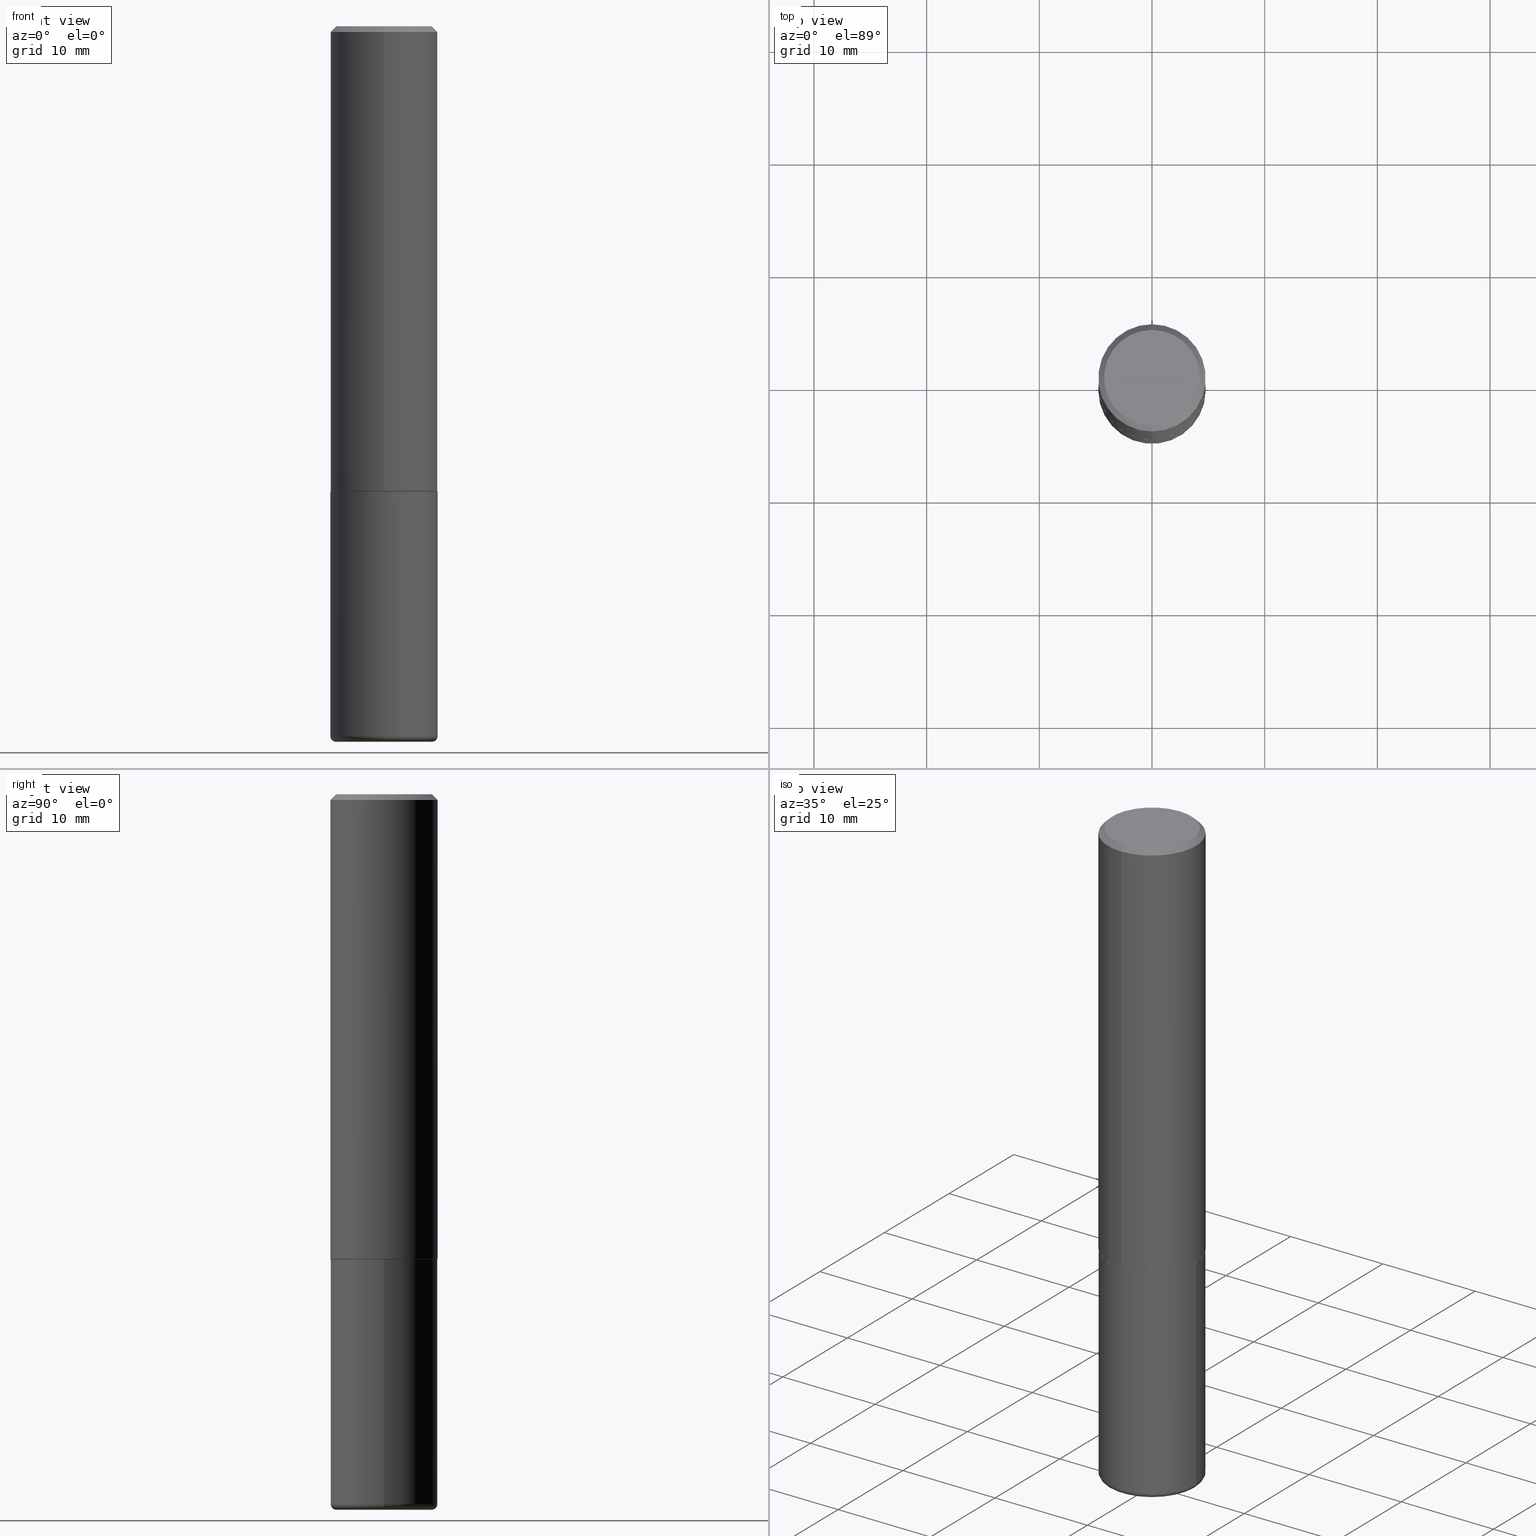
[diagram: canonical four-view strip — front | top / right | iso, engineering-drawing reading convention]
A machine part, canonical four-view strip (front | top / right | iso — engineering-drawing reading convention). The complete STEP part file that produces these views, byte-faithful:
ISO-10303-21;
HEADER;
FILE_DESCRIPTION (( 'STEP AP203' ),
    '1' );
FILE_NAME ('36856.STEP',
    '2024-03-01T18:16:26',
    ( '' ),
    ( '' ),
    'SwSTEP 2.0',
    'SolidWorks 2023',
    '' );
FILE_SCHEMA (( 'CONFIG_CONTROL_DESIGN' ));
ENDSEC;

DATA;
#1 = CIRCLE ( 'NONE', #334, 0.01999999999999988939 ) ;
#2 = AXIS2_PLACEMENT_3D ( 'NONE', #81, #337, #115 ) ;
#3 = AXIS2_PLACEMENT_3D ( 'NONE', #298, #412, #127 ) ;
#4 = CC_DESIGN_APPROVAL ( #134, ( #94 ) ) ;
#5 = ADVANCED_FACE ( 'NONE', ( #402 ), #51, .T. ) ;
#6 = SHAPE_DEFINITION_REPRESENTATION ( #236, #302 ) ;
#7 = EDGE_LOOP ( 'NONE', ( #142, #184, #23, #29 ) ) ;
#8 = DIRECTION ( 'NONE',  ( 2.438088387897960049E-29, -3.491481338843145188E-15, -1.000000000000000000 ) ) ;
#9 = CIRCLE ( 'NONE', #70, 0.1675000000000001210 ) ;
#10 = ORIENTED_EDGE ( 'NONE', *, *, #156, .F. ) ;
#11 = DIRECTION ( 'NONE',  ( -2.445468806185136877E-29, 3.491481338843145188E-15, 1.000000000000000000 ) ) ;
#12 = CALENDAR_DATE ( 2024, 1, 3 ) ;
#13 = CARTESIAN_POINT ( 'NONE',  ( 6.064762639339139522E-29, -8.658873720331001644E-15, -2.480000000000000426 ) ) ;
#14 = DIRECTION ( 'NONE',  ( 1.000000000000000000, -6.982962677686261189E-15, 0.000000000000000000 ) ) ;
#15 = ORIENTED_EDGE ( 'NONE', *, *, #392, .F. ) ;
#16 = AXIS2_PLACEMENT_3D ( 'NONE', #160, #260, #18 ) ;
#17 = CARTESIAN_POINT ( 'NONE',  ( -1.309305502066136748E-15, -0.1875000000000058842, -1.623999999999999666 ) ) ;
#18 = DIRECTION ( 'NONE',  ( -1.000000000000000000, 7.105427357601014480E-15, 0.000000000000000000 ) ) ;
#19 = DIRECTION ( 'NONE',  ( -6.982962677686266711E-15, -1.000000000000000000, 3.491481338843145583E-15 ) ) ;
#20 = PERSON_AND_ORGANIZATION_ROLE ( 'creator' ) ;
#21 = FACE_OUTER_BOUND ( 'NONE', #7, .T. ) ;
#22 = VERTEX_POINT ( 'NONE', #152 ) ;
#23 = ORIENTED_EDGE ( 'NONE', *, *, #250, .T. ) ;
#24 = VERTEX_POINT ( 'NONE', #69 ) ;
#25 = AXIS2_PLACEMENT_3D ( 'NONE', #107, #220, #408 ) ;
#26 =( GEOMETRIC_REPRESENTATION_CONTEXT ( 3 ) GLOBAL_UNCERTAINTY_ASSIGNED_CONTEXT ( ( #130 ) ) GLOBAL_UNIT_ASSIGNED_CONTEXT ( ( #65, #140, #207 ) ) REPRESENTATION_CONTEXT ( 'NONE', 'WORKASPACE' ) );
#27 = APPROVAL_PERSON_ORGANIZATION ( #322, #193, #144 ) ;
#28 = FACE_OUTER_BOUND ( 'NONE', #348, .T. ) ;
#29 = ORIENTED_EDGE ( 'NONE', *, *, #169, .F. ) ;
#30 = CARTESIAN_POINT ( 'NONE',  ( 6.113672015462842613E-29, -8.728703347107864943E-15, -2.500000000000000000 ) ) ;
#31 = FACE_OUTER_BOUND ( 'NONE', #68, .T. ) ;
#32 = CLOSED_SHELL ( 'NONE', ( #196, #5, #335, #114, #85, #244, #104, #117 ) ) ;
#33 = AXIS2_PLACEMENT_3D ( 'NONE', #385, #95, #231 ) ;
#34 = CARTESIAN_POINT ( 'NONE',  ( 1.328714915871427774E-15, 0.1864999999999943092, -1.625000000000000666 ) ) ;
#35 = PRODUCT_RELATED_PRODUCT_CATEGORY ( 'detail', '', ( #305 ) ) ;
#36 = EDGE_CURVE ( 'NONE', #159, #165, #1, .T. ) ;
#37 = AXIS2_PLACEMENT_3D ( 'NONE', #64, #195, #90 ) ;
#38 = ORIENTED_EDGE ( 'NONE', *, *, #166, .T. ) ;
#39 = CARTESIAN_POINT ( 'NONE',  ( 3.970274765435149780E-29, -5.671836297237862859E-15, -1.624000000000000110 ) ) ;
#40 = ORIENTED_EDGE ( 'NONE', *, *, #61, .F. ) ;
#41 = CARTESIAN_POINT ( 'NONE',  ( 6.064762639339139522E-29, -8.658873720331001644E-15, -2.480000000000000426 ) ) ;
#42 = ORIENTED_EDGE ( 'NONE', *, *, #166, .F. ) ;
#43 = TOROIDAL_SURFACE ( 'NONE', #172, 0.1675000000000000100, 0.01999999999999988939 ) ;
#44 = APPROVAL_STATUS ( 'not_yet_approved' ) ;
#45 = ORIENTED_EDGE ( 'NONE', *, *, #392, .T. ) ;
#46 = DATE_AND_TIME ( #12, #391 ) ;
#47 = DIRECTION ( 'NONE',  ( -2.445468806185136597E-29, 3.491481338843145583E-15, 1.000000000000000000 ) ) ;
#48 = EDGE_CURVE ( 'NONE', #191, #77, #303, .T. ) ;
#49 = CALENDAR_DATE ( 2024, 1, 3 ) ;
#50 = ORIENTED_EDGE ( 'NONE', *, *, #407, .F. ) ;
#51 = CYLINDRICAL_SURFACE ( 'NONE', #2, 0.1875000000000001110 ) ;
#52 = PERSON_AND_ORGANIZATION_ROLE ( 'classification_officer' ) ;
#53 = CARTESIAN_POINT ( 'NONE',  ( 0.1875000000000000278, -6.982962677686288010E-15, -1.625000000000000222 ) ) ;
#54 = DIRECTION ( 'NONE',  ( 1.000000000000000000, -6.982962677686265922E-15, 4.876176775795935793E-29 ) ) ;
#55 = DIRECTION ( 'NONE',  ( -2.444750471327062022E-29, 3.492510035244989057E-15, 1.000000000000000000 ) ) ;
#56 = CLOSED_SHELL ( 'NONE', ( #296, #319, #307, #92, #261, #418 ) ) ;
#57 = VECTOR ( 'NONE', #161, 39.37007874015748143 ) ;
#58 = APPROVAL_PERSON_ORGANIZATION ( #276, #134, #367 ) ;
#59 = CARTESIAN_POINT ( 'NONE',  ( 0.1675000000000000100, -9.898349595620314932E-15, -2.500000000000000000 ) ) ;
#60 = CARTESIAN_POINT ( 'NONE',  ( 2.500295033717015477E-45, -3.571859622789970961E-31, -1.022719931151011213E-16 ) ) ;
#61 = EDGE_CURVE ( 'NONE', #123, #159, #316, .T. ) ;
#62 = DIRECTION ( 'NONE',  ( 5.024295867789177050E-15, 0.7071067811867068897, 0.7071067811863879227 ) ) ;
#63 = CIRCLE ( 'NONE', #271, 0.1875000000000000278 ) ;
#64 = CARTESIAN_POINT ( 'NONE',  ( 4.889500942654134974E-31, -6.985020070489991672E-17, -0.02000000000000004205 ) ) ;
#65 =( CONVERSION_BASED_UNIT ( 'INCH', #308 ) LENGTH_UNIT ( ) NAMED_UNIT ( #299 ) );
#66 = ORIENTED_EDGE ( 'NONE', *, *, #132, .F. ) ;
#67 = VERTEX_POINT ( 'NONE', #53 ) ;
#68 = EDGE_LOOP ( 'NONE', ( #273, #240 ) ) ;
#69 = CARTESIAN_POINT ( 'NONE',  ( 1.332267629550208753E-15, 0.1874999999999945599, -1.624000000000000776 ) ) ;
#70 = AXIS2_PLACEMENT_3D ( 'NONE', #60, #133, #96 ) ;
#71 = PERSON_AND_ORGANIZATION ( #329, #347 ) ;
#72 = FACE_OUTER_BOUND ( 'NONE', #285, .T. ) ;
#73 = EDGE_CURVE ( 'NONE', #321, #265, #373, .T. ) ;
#74 = ORIENTED_EDGE ( 'NONE', *, *, #242, .F. ) ;
#75 = DATE_TIME_ROLE ( 'classification_date' ) ;
#76 = EDGE_LOOP ( 'NONE', ( #206, #389, #315, #371 ) ) ;
#77 = VERTEX_POINT ( 'NONE', #400 ) ;
#78 = COORDINATED_UNIVERSAL_TIME_OFFSET ( 5, 0, .BEHIND. ) ;
#79 = AXIS2_PLACEMENT_3D ( 'NONE', #151, #118, #88 ) ;
#80 = DIRECTION ( 'NONE',  ( -2.445468806185136597E-29, 3.491481338843145583E-15, 1.000000000000000000 ) ) ;
#81 = CARTESIAN_POINT ( 'NONE',  ( 0.000000000000000000, 0.000000000000000000, 0.000000000000000000 ) ) ;
#82 = PERSON_AND_ORGANIZATION ( #329, #347 ) ;
#83 = DIRECTION ( 'NONE',  ( -2.445468806185136597E-29, 3.491481338843145583E-15, 1.000000000000000000 ) ) ;
#84 = ORIENTED_EDGE ( 'NONE', *, *, #73, .T. ) ;
#85 = ADVANCED_FACE ( 'NONE', ( #209 ), #215, .T. ) ;
#86 = DIRECTION ( 'NONE',  ( -6.982962677686265922E-15, -1.000000000000000000, 2.929595703661408850E-15 ) ) ;
#87 = CARTESIAN_POINT ( 'NONE',  ( 3.972719515906477292E-29, -5.675328807273108302E-15, -1.625000000000000222 ) ) ;
#88 = DIRECTION ( 'NONE',  ( -6.982962677686265922E-15, -1.000000000000000000, 2.913971193241877216E-15 ) ) ;
#89 = DIRECTION ( 'NONE',  ( -6.982962677686265922E-15, -1.000000000000000000, 2.929595703661408850E-15 ) ) ;
#90 = DIRECTION ( 'NONE',  ( 6.982962677686265922E-15, 1.000000000000000000, -3.483106191921935160E-15 ) ) ;
#91 = VECTOR ( 'NONE', #297, 39.37007874015748143 ) ;
#92 = ADVANCED_FACE ( 'NONE', ( #211 ), #112, .T. ) ;
#93 = CARTESIAN_POINT ( 'NONE',  ( 1.325162202192626283E-15, 0.1864999999999943092, -1.625000000000000666 ) ) ;
#94 = PRODUCT_DEFINITION ( 'UNKNOWN', '', #155, #342 ) ;
#95 = DIRECTION ( 'NONE',  ( -2.444750471327062302E-29, 3.492510035244989057E-15, 1.000000000000000000 ) ) ;
#96 = DIRECTION ( 'NONE',  ( -6.982962677686265922E-15, -1.000000000000000000, 3.492510035244988662E-15 ) ) ;
#97 = EDGE_LOOP ( 'NONE', ( #352, #275, #254, #366 ) ) ;
#98 = DIRECTION ( 'NONE',  ( 1.000000000000000000, -6.982962677686266711E-15, 0.000000000000000000 ) ) ;
#99 = AXIS2_PLACEMENT_3D ( 'NONE', #87, #55, #259 ) ;
#100 = LOCAL_TIME ( 13, 16, 26.00000000000000000, #212 ) ;
#101 = EDGE_CURVE ( 'NONE', #102, #203, #179, .T. ) ;
#102 = VERTEX_POINT ( 'NONE', #34 ) ;
#103 = DIRECTION ( 'NONE',  ( -2.445468806185136597E-29, 3.491481338843145583E-15, 1.000000000000000000 ) ) ;
#104 = ADVANCED_FACE ( 'NONE', ( #164 ), #226, .F. ) ;
#105 = ORIENTED_EDGE ( 'NONE', *, *, #101, .F. ) ;
#106 = AXIS2_PLACEMENT_3D ( 'NONE', #349, #148, #252 ) ;
#107 = CARTESIAN_POINT ( 'NONE',  ( 2.500295033717015477E-45, -3.571859622789970961E-31, -1.022719931151011213E-16 ) ) ;
#108 = VECTOR ( 'NONE', #358, 39.37007874015748143 ) ;
#109 = PERSON_AND_ORGANIZATION ( #329, #347 ) ;
#110 = CC_DESIGN_APPROVAL ( #193, ( #262 ) ) ;
#111 = DIRECTION ( 'NONE',  ( -2.445468806185136597E-29, 3.491481338843145583E-15, 1.000000000000000000 ) ) ;
#112 = CYLINDRICAL_SURFACE ( 'NONE', #413, 0.1875000000000000278 ) ;
#113 = CARTESIAN_POINT ( 'NONE',  ( 0.000000000000000000, 0.000000000000000000, 0.000000000000000000 ) ) ;
#114 = ADVANCED_FACE ( 'NONE', ( #224 ), #282, .T. ) ;
#115 = DIRECTION ( 'NONE',  ( -6.982962677686266711E-15, -1.000000000000000000, 3.492510035244989451E-15 ) ) ;
#116 = DIRECTION ( 'NONE',  ( 1.000000000000000000, 0.000000000000000000, 0.000000000000000000 ) ) ;
#117 = ADVANCED_FACE ( 'NONE', ( #31 ), #197, .F. ) ;
#118 = DIRECTION ( 'NONE',  ( -2.444750471327062302E-29, 3.492510035244989057E-15, 1.000000000000000000 ) ) ;
#119 = ORIENTED_EDGE ( 'NONE', *, *, #213, .T. ) ;
#120 = PERSON_AND_ORGANIZATION ( #329, #347 ) ;
#121 = CIRCLE ( 'NONE', #383, 0.1875000000000000278 ) ;
#122 = FACE_OUTER_BOUND ( 'NONE', #97, .T. ) ;
#123 = VERTEX_POINT ( 'NONE', #192 ) ;
#124 = FACE_OUTER_BOUND ( 'NONE', #363, .T. ) ;
#125 = DIRECTION ( 'NONE',  ( -2.444750471327062302E-29, 3.492510035244989057E-15, 1.000000000000000000 ) ) ;
#126 = CC_DESIGN_PERSON_AND_ORGANIZATION_ASSIGNMENT ( #71, #403, ( #155 ) ) ;
#127 = DIRECTION ( 'NONE',  ( -6.982962677686265922E-15, -1.000000000000000000, 3.483106191921935160E-15 ) ) ;
#128 = DATE_AND_TIME ( #341, #100 ) ;
#129 = CARTESIAN_POINT ( 'NONE',  ( 0.1874999999999999722, -9.968179222397176653E-15, -2.480000000000000426 ) ) ;
#130 = UNCERTAINTY_MEASURE_WITH_UNIT (LENGTH_MEASURE( 1.000000000000000082E-05 ), #65, 'distance_accuracy_value', 'NONE');
#131 = MANIFOLD_SOLID_BREP ( 'Body-Move/Copy2[2]', #32 ) ;
#132 = EDGE_CURVE ( 'NONE', #203, #314, #382, .T. ) ;
#133 = DIRECTION ( 'NONE',  ( -2.444750471327062302E-29, 3.492510035244989057E-15, 1.000000000000000000 ) ) ;
#134 = APPROVAL ( #345, 'UNSPECIFIED' ) ;
#135 = AXIS2_PLACEMENT_3D ( 'NONE', #228, #198, #200 ) ;
#136 = EDGE_LOOP ( 'NONE', ( #42, #40 ) ) ;
#137 = CARTESIAN_POINT ( 'NONE',  ( 3.973886810050848091E-29, -5.673657175620113002E-15, -1.625000000000000222 ) ) ;
#138 = VECTOR ( 'NONE', #327, 39.37007874015748143 ) ;
#139 = EDGE_LOOP ( 'NONE', ( #205, #84, #50, #237 ) ) ;
#140 =( NAMED_UNIT ( * ) PLANE_ANGLE_UNIT ( ) SI_UNIT ( $, .RADIAN. ) );
#141 = EDGE_CURVE ( 'NONE', #77, #191, #9, .T. ) ;
#142 = ORIENTED_EDGE ( 'NONE', *, *, #141, .F. ) ;
#143 = EDGE_LOOP ( 'NONE', ( #333, #45, #344, #293 ) ) ;
#144 = APPROVAL_ROLE ( '' ) ;
#145 = CARTESIAN_POINT ( 'NONE',  ( -1.302322539388448565E-15, -0.1865000000000056335, -1.624999999999999556 ) ) ;
#146 = CARTESIAN_POINT ( 'NONE',  ( 0.1675000000000000100, -9.828519968843451634E-15, -2.480000000000000426 ) ) ;
#147 = CIRCLE ( 'NONE', #16, 0.01999999999999988939 ) ;
#148 = DIRECTION ( 'NONE',  ( -2.445468806185136597E-29, 3.491481338843145583E-15, 1.000000000000000000 ) ) ;
#149 = APPROVAL_DATE_TIME ( #248, #134 ) ;
#150 = FACE_OUTER_BOUND ( 'NONE', #139, .T. ) ;
#151 = CARTESIAN_POINT ( 'NONE',  ( 3.970274765435149780E-29, -5.671836297237862859E-15, -1.624000000000000110 ) ) ;
#152 = CARTESIAN_POINT ( 'NONE',  ( -1.286343374582161576E-15, -0.1875000000000000833, -0.01999999999999938979 ) ) ;
#153 = ORIENTED_EDGE ( 'NONE', *, *, #381, .F. ) ;
#154 = FACE_OUTER_BOUND ( 'NONE', #247, .T. ) ;
#155 = PRODUCT_DEFINITION_FORMATION_WITH_SPECIFIED_SOURCE ( 'ANY', '', #305, .NOT_KNOWN. ) ;
#156 = EDGE_CURVE ( 'NONE', #362, #22, #255, .T. ) ;
#157 = LINE ( 'NONE', #380, #108 ) ;
#158 = CC_DESIGN_PERSON_AND_ORGANIZATION_ASSIGNMENT ( #311, #20, ( #155 ) ) ;
#159 = VERTEX_POINT ( 'NONE', #59 ) ;
#160 = CARTESIAN_POINT ( 'NONE',  ( -0.1675000000000000100, -7.468714637932833959E-15, -2.480000000000000426 ) ) ;
#161 = DIRECTION ( 'NONE',  ( -2.444750471327062583E-29, 3.492510035244989057E-15, 1.000000000000000000 ) ) ;
#162 = AXIS2_PLACEMENT_3D ( 'NONE', #185, #178, #396 ) ;
#163 = LOCAL_TIME ( 13, 16, 26.00000000000000000, #181 ) ;
#164 = FACE_OUTER_BOUND ( 'NONE', #243, .T. ) ;
#165 = VERTEX_POINT ( 'NONE', #129 ) ;
#166 = EDGE_CURVE ( 'NONE', #159, #123, #332, .T. ) ;
#167 = CONICAL_SURFACE ( 'NONE', #266, 0.1864999999999999714, 0.7853981633976704346 ) ;
#168 = EDGE_CURVE ( 'NONE', #24, #362, #194, .T. ) ;
#169 = EDGE_CURVE ( 'NONE', #191, #362, #384, .T. ) ;
#170 = CARTESIAN_POINT ( 'NONE',  ( 6.113672015462842613E-29, -8.728703347107864943E-15, -2.500000000000000000 ) ) ;
#171 = EDGE_CURVE ( 'NONE', #203, #102, #304, .T. ) ;
#172 = AXIS2_PLACEMENT_3D ( 'NONE', #13, #284, #401 ) ;
#173 = APPROVAL_ROLE ( '' ) ;
#174 = DIRECTION ( 'NONE',  ( -6.982962677686266711E-15, -1.000000000000000000, 3.492510035244989451E-15 ) ) ;
#175 = DATE_AND_TIME ( #217, #292 ) ;
#176 = DIRECTION ( 'NONE',  ( 1.000000000000000000, -6.982962677686265922E-15, 4.876176775795935793E-29 ) ) ;
#177 = DATE_TIME_ROLE ( 'creation_date' ) ;
#178 = DIRECTION ( 'NONE',  ( 2.438088387897960049E-29, -3.491481338843145188E-15, -1.000000000000000000 ) ) ;
#179 = CIRCLE ( 'NONE', #239, 0.1864999999999999714 ) ;
#180 = ORIENTED_EDGE ( 'NONE', *, *, #187, .T. ) ;
#181 = COORDINATED_UNIVERSAL_TIME_OFFSET ( 5, 0, .BEHIND. ) ;
#182 = PLANE ( 'NONE',  #162 ) ;
#183 = EDGE_CURVE ( 'NONE', #165, #67, #157, .T. ) ;
#184 = ORIENTED_EDGE ( 'NONE', *, *, #234, .T. ) ;
#185 = CARTESIAN_POINT ( 'NONE',  ( 3.973886810050848091E-29, -5.673657175620113002E-15, -1.625000000000000222 ) ) ;
#186 = DIRECTION ( 'NONE',  ( -2.444750471327062302E-29, 3.492510035244989057E-15, 1.000000000000000000 ) ) ;
#187 = EDGE_CURVE ( 'NONE', #102, #24, #295, .T. ) ;
#188 = DIRECTION ( 'NONE',  ( -2.444750471327062302E-29, 3.492510035244989057E-15, 1.000000000000000000 ) ) ;
#189 = CARTESIAN_POINT ( 'NONE',  ( 1.239475875289312893E-15, 0.1675000000000001210, -6.872674240186371088E-16 ) ) ;
#190 = CC_DESIGN_APPROVAL ( #235, ( #155 ) ) ;
#191 = VERTEX_POINT ( 'NONE', #189 ) ;
#192 = CARTESIAN_POINT ( 'NONE',  ( -0.1675000000000000100, -7.432575177745255527E-15, -2.500000000000000000 ) ) ;
#193 = APPROVAL ( #313, 'UNSPECIFIED' ) ;
#194 = LINE ( 'NONE', #415, #57 ) ;
#195 = DIRECTION ( 'NONE',  ( 2.444750471327062302E-29, -3.492510035244989057E-15, -1.000000000000000000 ) ) ;
#196 = ADVANCED_FACE ( 'NONE', ( #28 ), #325, .T. ) ;
#197 = PLANE ( 'NONE',  #336 ) ;
#198 = DIRECTION ( 'NONE',  ( -2.445468806185136597E-29, 3.491481338843145583E-15, 1.000000000000000000 ) ) ;
#199 = AXIS2_PLACEMENT_3D ( 'NONE', #39, #388, #270 ) ;
#200 = DIRECTION ( 'NONE',  ( 1.000000000000000000, -6.982962677686266711E-15, 0.000000000000000000 ) ) ;
#201 = EDGE_CURVE ( 'NONE', #123, #321, #147, .T. ) ;
#202 = AXIS2_PLACEMENT_3D ( 'NONE', #330, #125, #89 ) ;
#203 = VERTEX_POINT ( 'NONE', #145 ) ;
#204 = ORIENTED_EDGE ( 'NONE', *, *, #36, .F. ) ;
#205 = ORIENTED_EDGE ( 'NONE', *, *, #242, .T. ) ;
#206 = ORIENTED_EDGE ( 'NONE', *, *, #234, .F. ) ;
#207 =( NAMED_UNIT ( * ) SI_UNIT ( $, .STERADIAN. ) SOLID_ANGLE_UNIT ( ) );
#208 = AXIS2_PLACEMENT_3D ( 'NONE', #113, #370, #116 ) ;
#209 = FACE_OUTER_BOUND ( 'NONE', #323, .T. ) ;
#210 = COORDINATED_UNIVERSAL_TIME_OFFSET ( 5, 0, .BEHIND. ) ;
#211 = FACE_OUTER_BOUND ( 'NONE', #143, .T. ) ;
#212 = COORDINATED_UNIVERSAL_TIME_OFFSET ( 5, 0, .BEHIND. ) ;
#213 = EDGE_CURVE ( 'NONE', #24, #314, #387, .T. ) ;
#214 = ORIENTED_EDGE ( 'NONE', *, *, #359, .T. ) ;
#215 = CYLINDRICAL_SURFACE ( 'NONE', #232, 0.1875000000000001110 ) ;
#216 = CIRCLE ( 'NONE', #135, 0.1875000000000000278 ) ;
#217 = CALENDAR_DATE ( 2024, 1, 3 ) ;
#218 = CC_DESIGN_DATE_AND_TIME_ASSIGNMENT ( #175, #75, ( #262 ) ) ;
#219 = DIRECTION ( 'NONE',  ( 1.000000000000000000, -6.982962677686265922E-15, 4.883557194083112901E-29 ) ) ;
#220 = DIRECTION ( 'NONE',  ( -2.444750471327062302E-29, 3.492510035244989057E-15, 1.000000000000000000 ) ) ;
#221 = DATE_AND_TIME ( #49, #416 ) ;
#222 = LINE ( 'NONE', #249, #406 ) ;
#223 = CC_DESIGN_DATE_AND_TIME_ASSIGNMENT ( #221, #177, ( #94 ) ) ;
#224 = FACE_OUTER_BOUND ( 'NONE', #76, .T. ) ;
#225 = ORIENTED_EDGE ( 'NONE', *, *, #36, .T. ) ;
#226 = PLANE ( 'NONE',  #99 ) ;
#227 = CIRCLE ( 'NONE', #199, 0.1875000000000002220 ) ;
#228 = CARTESIAN_POINT ( 'NONE',  ( 3.973886810050848091E-29, -5.673657175620113002E-15, -1.625000000000000222 ) ) ;
#229 = APPLICATION_CONTEXT ( 'configuration controlled 3d designs of mechanical parts and assemblies' ) ;
#230 = CARTESIAN_POINT ( 'NONE',  ( -1.302322539388448565E-15, -0.1865000000000056335, -1.624999999999999556 ) ) ;
#231 = DIRECTION ( 'NONE',  ( -6.982962677686265922E-15, -1.000000000000000000, 2.929595703661408850E-15 ) ) ;
#232 = AXIS2_PLACEMENT_3D ( 'NONE', #369, #186, #174 ) ;
#233 = CONICAL_SURFACE ( 'NONE', #37, 0.1875000000000000278, 0.7853981633974471688 ) ;
#234 = EDGE_CURVE ( 'NONE', #77, #22, #257, .T. ) ;
#235 = APPROVAL ( #44, 'UNSPECIFIED' ) ;
#236 = PRODUCT_DEFINITION_SHAPE ( 'NONE', 'NONE',  #94 ) ;
#237 = ORIENTED_EDGE ( 'NONE', *, *, #183, .F. ) ;
#238 = PLANE ( 'NONE',  #291 ) ;
#239 = AXIS2_PLACEMENT_3D ( 'NONE', #251, #417, #355 ) ;
#240 = ORIENTED_EDGE ( 'NONE', *, *, #141, .T. ) ;
#241 = DIRECTION ( 'NONE',  ( 1.000000000000000000, -6.982962677686261189E-15, 0.000000000000000000 ) ) ;
#242 = EDGE_CURVE ( 'NONE', #165, #321, #360, .T. ) ;
#243 = EDGE_LOOP ( 'NONE', ( #287, #105 ) ) ;
#244 = ADVANCED_FACE ( 'NONE', ( #122 ), #167, .T. ) ;
#245 = APPLICATION_PROTOCOL_DEFINITION ( 'international standard', 'config_control_design', 1994, #229 ) ;
#246 = AXIS2_PLACEMENT_3D ( 'NONE', #405, #111, #14 ) ;
#247 = EDGE_LOOP ( 'NONE', ( #397, #214 ) ) ;
#248 = DATE_AND_TIME ( #378, #163 ) ;
#249 = CARTESIAN_POINT ( 'NONE',  ( -1.309305502066175797E-15, -0.1875000000000001110, 6.548456316084358919E-16 ) ) ;
#250 = EDGE_CURVE ( 'NONE', #22, #362, #300, .T. ) ;
#251 = CARTESIAN_POINT ( 'NONE',  ( 3.972719515906476732E-29, -5.675328807273107513E-15, -1.625000000000000000 ) ) ;
#252 = DIRECTION ( 'NONE',  ( 1.000000000000000000, -6.982962677686271444E-15, 0.000000000000000000 ) ) ;
#253 = SECURITY_CLASSIFICATION_LEVEL ( 'unclassified' ) ;
#254 = ORIENTED_EDGE ( 'NONE', *, *, #132, .T. ) ;
#255 = CIRCLE ( 'NONE', #3, 0.1875000000000000278 ) ;
#256 = CC_DESIGN_PERSON_AND_ORGANIZATION_ASSIGNMENT ( #82, #398, ( #94 ) ) ;
#257 = LINE ( 'NONE', #286, #399 ) ;
#258 = ORIENTED_EDGE ( 'NONE', *, *, #280, .F. ) ;
#259 = DIRECTION ( 'NONE',  ( -6.982962677686265922E-15, -1.000000000000000000, 3.492510035244989057E-15 ) ) ;
#260 = DIRECTION ( 'NONE',  ( 7.105427357601001859E-15, 1.000000000000000000, -3.491481338843145583E-15 ) ) ;
#261 = ADVANCED_FACE ( 'NONE', ( #124 ), #368, .T. ) ;
#262 = SECURITY_CLASSIFICATION ( '', '', #253 ) ;
#263 = CARTESIAN_POINT ( 'NONE',  ( 1.309305502066175600E-15, 0.1874999999999999445, -0.02000000000000069431 ) ) ;
#264 = DIRECTION ( 'NONE',  ( 2.444750471327062302E-29, -3.492510035244989057E-15, -1.000000000000000000 ) ) ;
#265 = VERTEX_POINT ( 'NONE', #357 ) ;
#266 = AXIS2_PLACEMENT_3D ( 'NONE', #379, #188, #86 ) ;
#267 = EDGE_LOOP ( 'NONE', ( #306, #312, #317, #258 ) ) ;
#268 = DIRECTION ( 'NONE',  ( -2.445468806185136597E-29, 3.491481338843145583E-15, 1.000000000000000000 ) ) ;
#269 = MANIFOLD_SOLID_BREP ( 'Body-Move/Copy2[1]', #56 ) ;
#270 = DIRECTION ( 'NONE',  ( -6.982962677686265922E-15, -1.000000000000000000, 2.913971193241877216E-15 ) ) ;
#271 = AXIS2_PLACEMENT_3D ( 'NONE', #41, #103, #241 ) ;
#272 = APPROVAL_PERSON_ORGANIZATION ( #109, #235, #173 ) ;
#273 = ORIENTED_EDGE ( 'NONE', *, *, #48, .T. ) ;
#274 = FACE_OUTER_BOUND ( 'NONE', #136, .T. ) ;
#275 = ORIENTED_EDGE ( 'NONE', *, *, #101, .T. ) ;
#276 = PERSON_AND_ORGANIZATION ( #329, #347 ) ;
#277 = ORIENTED_EDGE ( 'NONE', *, *, #171, .T. ) ;
#278 = MECHANICAL_CONTEXT ( 'NONE', #356, 'mechanical' ) ;
#279 = CARTESIAN_POINT ( 'NONE',  ( 0.000000000000000000, 0.000000000000000000, 0.000000000000000000 ) ) ;
#280 = EDGE_CURVE ( 'NONE', #314, #22, #222, .T. ) ;
#281 = VECTOR ( 'NONE', #11, 39.37007874015748143 ) ;
#282 = CONICAL_SURFACE ( 'NONE', #414, 0.1875000000000000278, 0.7853981633974471688 ) ;
#283 = CARTESIAN_POINT ( 'NONE',  ( -0.1875000000000000278, 1.332267629550188046E-15, -9.223003294227947991E-30 ) ) ;
#284 = DIRECTION ( 'NONE',  ( -2.445468806185136597E-29, 3.491481338843145583E-15, 1.000000000000000000 ) ) ;
#285 = EDGE_LOOP ( 'NONE', ( #38, #310, #74, #204 ) ) ;
#286 = CARTESIAN_POINT ( 'NONE',  ( -1.286343374582161576E-15, -0.1875000000000000833, -0.01999999999999938979 ) ) ;
#287 = ORIENTED_EDGE ( 'NONE', *, *, #171, .F. ) ;
#288 = PERSON_AND_ORGANIZATION_ROLE ( 'design_owner' ) ;
#289 = DIRECTION ( 'NONE',  ( -4.851104656540957964E-15, -0.7071067811865491270, -0.7071067811865459074 ) ) ;
#290 = ORIENTED_EDGE ( 'NONE', *, *, #61, .T. ) ;
#291 = AXIS2_PLACEMENT_3D ( 'NONE', #170, #8, #393 ) ;
#292 = LOCAL_TIME ( 13, 16, 26.00000000000000000, #210 ) ;
#293 = ORIENTED_EDGE ( 'NONE', *, *, #359, .F. ) ;
#294 = CARTESIAN_POINT ( 'NONE',  ( 4.889500942654134974E-31, -6.985020070489991672E-17, -0.02000000000000004205 ) ) ;
#295 = LINE ( 'NONE', #93, #376 ) ;
#296 = ADVANCED_FACE ( 'NONE', ( #150 ), #372, .T. ) ;
#297 = DIRECTION ( 'NONE',  ( -4.937700262165644559E-15, -0.7071067811867021158, 0.7071067811863929187 ) ) ;
#298 = CARTESIAN_POINT ( 'NONE',  ( 4.889500942654134974E-31, -6.985020070489991672E-17, -0.02000000000000004205 ) ) ;
#299 = DIMENSIONAL_EXPONENTS ( 1.000000000000000000, 0.000000000000000000, 0.000000000000000000, 0.000000000000000000, 0.000000000000000000, 0.000000000000000000, 0.000000000000000000 ) ;
#300 = CIRCLE ( 'NONE', #346, 0.1875000000000000278 ) ;
#301 = CARTESIAN_POINT ( 'NONE',  ( 1.169646248512450384E-15, 0.1675000000000001210, -6.361314274610866591E-16 ) ) ;
#302 = ADVANCED_BREP_SHAPE_REPRESENTATION ( '36856', ( #269, #131, #208 ), #26 ) ;
#303 = CIRCLE ( 'NONE', #25, 0.1675000000000001210 ) ;
#304 = CIRCLE ( 'NONE', #33, 0.1864999999999999714 ) ;
#305 = PRODUCT ( '36856', '36856', '', ( #278 ) ) ;
#306 = ORIENTED_EDGE ( 'NONE', *, *, #381, .T. ) ;
#307 = ADVANCED_FACE ( 'NONE', ( #154 ), #182, .F. ) ;
#308 = LENGTH_MEASURE_WITH_UNIT ( LENGTH_MEASURE( 0.02539999999999999897 ), #364 );
#309 = AXIS2_PLACEMENT_3D ( 'NONE', #279, #80, #54 ) ;
#310 = ORIENTED_EDGE ( 'NONE', *, *, #201, .T. ) ;
#311 = PERSON_AND_ORGANIZATION ( #329, #347 ) ;
#312 = ORIENTED_EDGE ( 'NONE', *, *, #168, .T. ) ;
#313 = APPROVAL_STATUS ( 'not_yet_approved' ) ;
#314 = VERTEX_POINT ( 'NONE', #17 ) ;
#315 = ORIENTED_EDGE ( 'NONE', *, *, #169, .T. ) ;
#316 = CIRCLE ( 'NONE', #106, 0.1675000000000000100 ) ;
#317 = ORIENTED_EDGE ( 'NONE', *, *, #250, .F. ) ;
#318 = COORDINATED_UNIVERSAL_TIME_OFFSET ( 5, 0, .BEHIND. ) ;
#319 = ADVANCED_FACE ( 'NONE', ( #72 ), #43, .T. ) ;
#320 = CARTESIAN_POINT ( 'NONE',  ( -0.1874999999999999722, -7.326606090780813796E-15, -2.480000000000000426 ) ) ;
#321 = VERTEX_POINT ( 'NONE', #320 ) ;
#322 = PERSON_AND_ORGANIZATION ( #329, #347 ) ;
#323 = EDGE_LOOP ( 'NONE', ( #375, #119, #365, #10 ) ) ;
#324 = CARTESIAN_POINT ( 'NONE',  ( 4.889500942654134974E-31, -6.985020070489991672E-17, -0.02000000000000004205 ) ) ;
#325 = CONICAL_SURFACE ( 'NONE', #202, 0.1864999999999999714, 0.7853981633976704346 ) ;
#326 = DIRECTION ( 'NONE',  ( 6.982962677686265922E-15, 1.000000000000000000, -3.483106191921935160E-15 ) ) ;
#327 = DIRECTION ( 'NONE',  ( 4.937700262164541731E-15, 0.7071067811865442421, -0.7071067811865507924 ) ) ;
#328 = APPROVAL_DATE_TIME ( #128, #193 ) ;
#329 = PERSON ( 'UNSPECIFIED', 'UNSPECIFIED', 'UNSPECIFIED', ('UNSPECIFIED'), ('UNSPECIFIED'), ('UNSPECIFIED') ) ;
#330 = CARTESIAN_POINT ( 'NONE',  ( 3.972719515906476732E-29, -5.675328807273107513E-15, -1.625000000000000000 ) ) ;
#331 = AXIS2_PLACEMENT_3D ( 'NONE', #343, #83, #219 ) ;
#332 = CIRCLE ( 'NONE', #390, 0.1675000000000000100 ) ;
#333 = ORIENTED_EDGE ( 'NONE', *, *, #73, .F. ) ;
#334 = AXIS2_PLACEMENT_3D ( 'NONE', #146, #19, #404 ) ;
#335 = ADVANCED_FACE ( 'NONE', ( #21 ), #233, .T. ) ;
#336 = AXIS2_PLACEMENT_3D ( 'NONE', #301, #353, #386 ) ;
#337 = DIRECTION ( 'NONE',  ( -2.444750471327062302E-29, 3.492510035244989057E-15, 1.000000000000000000 ) ) ;
#338 = APPROVAL_DATE_TIME ( #46, #235 ) ;
#339 = DIRECTION ( 'NONE',  ( -2.444750471327062302E-29, 3.492510035244989057E-15, 1.000000000000000000 ) ) ;
#340 = CARTESIAN_POINT ( 'NONE',  ( 0.000000000000000000, 0.000000000000000000, 0.000000000000000000 ) ) ;
#341 = CALENDAR_DATE ( 2024, 1, 3 ) ;
#342 = DESIGN_CONTEXT ( 'detailed design', #229, 'design' ) ;
#343 = CARTESIAN_POINT ( 'NONE',  ( 6.064762639339139522E-29, -8.658873720331001644E-15, -2.480000000000000426 ) ) ;
#344 = ORIENTED_EDGE ( 'NONE', *, *, #183, .T. ) ;
#345 = APPROVAL_STATUS ( 'not_yet_approved' ) ;
#346 = AXIS2_PLACEMENT_3D ( 'NONE', #294, #339, #410 ) ;
#347 = ORGANIZATION ( 'UNSPECIFIED', 'UNSPECIFIED', '' ) ;
#348 = EDGE_LOOP ( 'NONE', ( #277, #180, #153, #66 ) ) ;
#349 = CARTESIAN_POINT ( 'NONE',  ( 6.113672015462842613E-29, -8.728703347107864943E-15, -2.500000000000000000 ) ) ;
#350 = DIRECTION ( 'NONE',  ( -2.444750471327062583E-29, 3.492510035244989057E-15, 1.000000000000000000 ) ) ;
#351 = DIRECTION ( 'NONE',  ( -2.445468806185136597E-29, 3.491481338843145583E-15, 1.000000000000000000 ) ) ;
#352 = ORIENTED_EDGE ( 'NONE', *, *, #187, .F. ) ;
#353 = DIRECTION ( 'NONE',  ( 2.444750471327062022E-29, -3.492510035244989057E-15, -1.000000000000000000 ) ) ;
#354 = CC_DESIGN_SECURITY_CLASSIFICATION ( #262, ( #155 ) ) ;
#355 = DIRECTION ( 'NONE',  ( -6.982962677686265922E-15, -1.000000000000000000, 2.929595703661408850E-15 ) ) ;
#356 = APPLICATION_CONTEXT ( 'configuration controlled 3d designs of mechanical parts and assemblies' ) ;
#357 = CARTESIAN_POINT ( 'NONE',  ( -0.1875000000000000278, -5.833997818425370658E-15, -1.625000000000000222 ) ) ;
#358 = DIRECTION ( 'NONE',  ( -2.445468806185136877E-29, 3.491481338843145188E-15, 1.000000000000000000 ) ) ;
#359 = EDGE_CURVE ( 'NONE', #265, #67, #216, .T. ) ;
#360 = CIRCLE ( 'NONE', #246, 0.1875000000000000278 ) ;
#361 = CC_DESIGN_PERSON_AND_ORGANIZATION_ASSIGNMENT ( #120, #288, ( #305 ) ) ;
#362 = VERTEX_POINT ( 'NONE', #409 ) ;
#363 = EDGE_LOOP ( 'NONE', ( #377, #290, #225, #15 ) ) ;
#364 =( LENGTH_UNIT ( ) NAMED_UNIT ( * ) SI_UNIT ( $, .METRE. ) );
#365 = ORIENTED_EDGE ( 'NONE', *, *, #280, .T. ) ;
#366 = ORIENTED_EDGE ( 'NONE', *, *, #213, .F. ) ;
#367 = APPROVAL_ROLE ( '' ) ;
#368 = TOROIDAL_SURFACE ( 'NONE', #331, 0.1675000000000000100, 0.01999999999999988939 ) ;
#369 = CARTESIAN_POINT ( 'NONE',  ( 0.000000000000000000, 0.000000000000000000, 0.000000000000000000 ) ) ;
#370 = DIRECTION ( 'NONE',  ( 0.000000000000000000, 0.000000000000000000, 1.000000000000000000 ) ) ;
#371 = ORIENTED_EDGE ( 'NONE', *, *, #156, .T. ) ;
#372 = CYLINDRICAL_SURFACE ( 'NONE', #309, 0.1875000000000000278 ) ;
#373 = LINE ( 'NONE', #283, #281 ) ;
#374 = PERSON_AND_ORGANIZATION ( #329, #347 ) ;
#375 = ORIENTED_EDGE ( 'NONE', *, *, #168, .F. ) ;
#376 = VECTOR ( 'NONE', #62, 39.37007874015748854 ) ;
#377 = ORIENTED_EDGE ( 'NONE', *, *, #201, .F. ) ;
#378 = CALENDAR_DATE ( 2024, 1, 3 ) ;
#379 = CARTESIAN_POINT ( 'NONE',  ( 3.972719515906476732E-29, -5.675328807273107513E-15, -1.625000000000000000 ) ) ;
#380 = CARTESIAN_POINT ( 'NONE',  ( 0.1875000000000000278, -1.309305502066175008E-15, 9.142831454617381013E-30 ) ) ;
#381 = EDGE_CURVE ( 'NONE', #314, #24, #227, .T. ) ;
#382 = LINE ( 'NONE', #230, #91 ) ;
#383 = AXIS2_PLACEMENT_3D ( 'NONE', #137, #268, #98 ) ;
#384 = LINE ( 'NONE', #263, #138 ) ;
#385 = CARTESIAN_POINT ( 'NONE',  ( 3.972719515906476732E-29, -5.675328807273107513E-15, -1.625000000000000000 ) ) ;
#386 = DIRECTION ( 'NONE',  ( 6.982962677686265922E-15, 1.000000000000000000, -3.492510035244989057E-15 ) ) ;
#387 = CIRCLE ( 'NONE', #79, 0.1875000000000002220 ) ;
#388 = DIRECTION ( 'NONE',  ( -2.444750471327062302E-29, 3.492510035244989057E-15, 1.000000000000000000 ) ) ;
#389 = ORIENTED_EDGE ( 'NONE', *, *, #48, .F. ) ;
#390 = AXIS2_PLACEMENT_3D ( 'NONE', #30, #351, #411 ) ;
#391 = LOCAL_TIME ( 13, 16, 26.00000000000000000, #78 ) ;
#392 = EDGE_CURVE ( 'NONE', #321, #165, #63, .T. ) ;
#393 = DIRECTION ( 'NONE',  ( -1.000000000000000000, 6.982962677686265922E-15, -4.876176775795935793E-29 ) ) ;
#394 = APPLICATION_PROTOCOL_DEFINITION ( 'international standard', 'config_control_design', 1994, #356 ) ;
#395 = CC_DESIGN_PERSON_AND_ORGANIZATION_ASSIGNMENT ( #374, #52, ( #262 ) ) ;
#396 = DIRECTION ( 'NONE',  ( -1.000000000000000000, 6.982962677686265922E-15, -4.876176775795935793E-29 ) ) ;
#397 = ORIENTED_EDGE ( 'NONE', *, *, #407, .T. ) ;
#398 = PERSON_AND_ORGANIZATION_ROLE ( 'creator' ) ;
#399 = VECTOR ( 'NONE', #289, 39.37007874015748143 ) ;
#400 = CARTESIAN_POINT ( 'NONE',  ( -1.217738394604446837E-15, -0.1675000000000001210, 4.827234377884349155E-16 ) ) ;
#401 = DIRECTION ( 'NONE',  ( 1.000000000000000000, -6.982962677686265922E-15, 4.883557194083112901E-29 ) ) ;
#402 = FACE_OUTER_BOUND ( 'NONE', #267, .T. ) ;
#403 = PERSON_AND_ORGANIZATION_ROLE ( 'design_supplier' ) ;
#404 = DIRECTION ( 'NONE',  ( 1.000000000000000000, -6.982962677686274599E-15, 0.000000000000000000 ) ) ;
#405 = CARTESIAN_POINT ( 'NONE',  ( 6.064762639339139522E-29, -8.658873720331001644E-15, -2.480000000000000426 ) ) ;
#406 = VECTOR ( 'NONE', #350, 39.37007874015748143 ) ;
#407 = EDGE_CURVE ( 'NONE', #67, #265, #121, .T. ) ;
#408 = DIRECTION ( 'NONE',  ( -6.982962677686265922E-15, -1.000000000000000000, 3.492510035244988662E-15 ) ) ;
#409 = CARTESIAN_POINT ( 'NONE',  ( 1.309305502066175600E-15, 0.1874999999999999445, -0.02000000000000069431 ) ) ;
#410 = DIRECTION ( 'NONE',  ( -6.982962677686265922E-15, -1.000000000000000000, 3.483106191921935160E-15 ) ) ;
#411 = DIRECTION ( 'NONE',  ( 1.000000000000000000, -6.982962677686271444E-15, 0.000000000000000000 ) ) ;
#412 = DIRECTION ( 'NONE',  ( -2.444750471327062302E-29, 3.492510035244989057E-15, 1.000000000000000000 ) ) ;
#413 = AXIS2_PLACEMENT_3D ( 'NONE', #340, #47, #176 ) ;
#414 = AXIS2_PLACEMENT_3D ( 'NONE', #324, #264, #326 ) ;
#415 = CARTESIAN_POINT ( 'NONE',  ( 1.332267629550188440E-15, 0.1875000000000001110, -6.548456316084358919E-16 ) ) ;
#416 = LOCAL_TIME ( 13, 16, 26.00000000000000000, #318 ) ;
#417 = DIRECTION ( 'NONE',  ( -2.444750471327062302E-29, 3.492510035244989057E-15, 1.000000000000000000 ) ) ;
#418 = ADVANCED_FACE ( 'NONE', ( #274 ), #238, .T. ) ;
ENDSEC;
END-ISO-10303-21;
